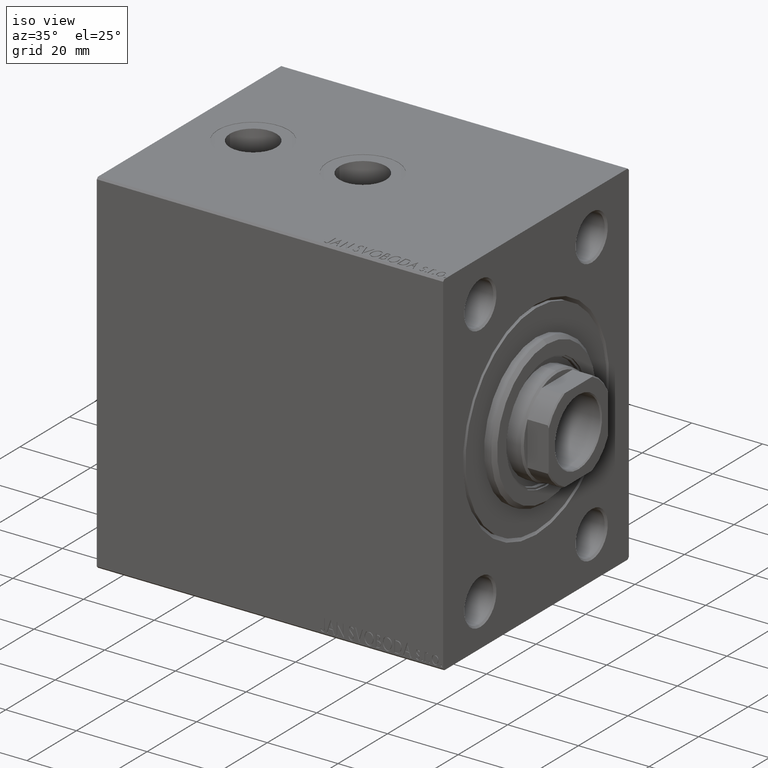
[diagram: clean part render]
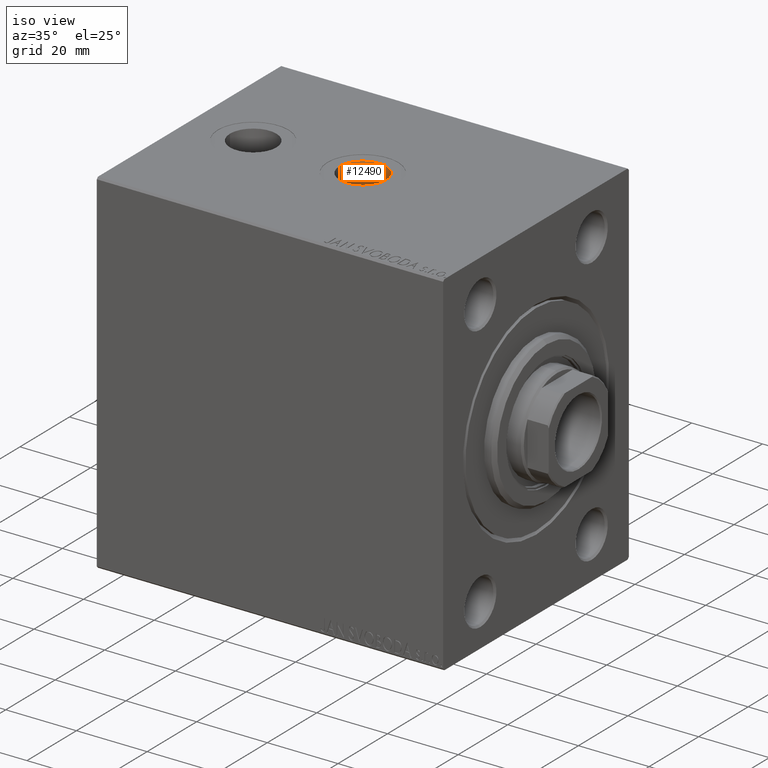
[diagram: same view with one face highlighted and labeled with its STEP entity id]
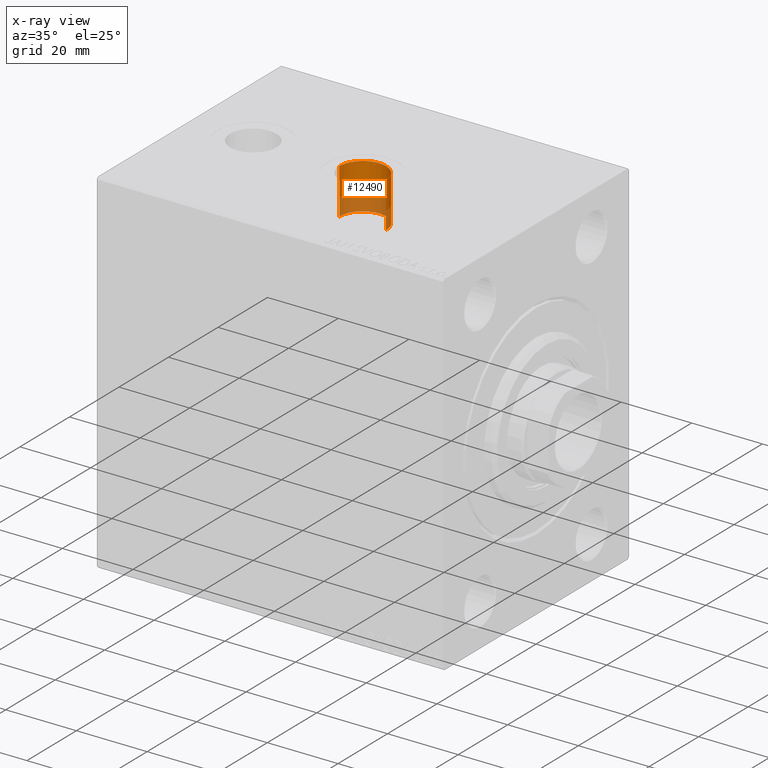
[diagram: x-ray of the same camera — body ghosted, the highlighted face saturated]
A machine part, iso view. The second image highlights one B-rep face of the part: STEP entity #12490.
The next image is the same camera in x-ray: the body ghosted, the highlighted face saturated — about 39% of this face is hidden behind the body in this view.
In plain terms, the highlighted cylindrical surface (edge-blend (fillet) strip) has radius 6.58 mm, axis along (-0, 0, 1).
Its self-contained STEP definition (entity closure, byte-faithful):
#1682 = AXIS2_PLACEMENT_3D ( 'NONE', #12098, #30114, #41325 ) ;
#2552 = CARTESIAN_POINT ( 'NONE',  ( 42.42000000000000171, 3.034628949564101458E-15, -49.90000000000000568 ) ) ;
#3315 = ORIENTED_EDGE ( 'NONE', *, *, #43114, .F. ) ;
#5208 = FACE_OUTER_BOUND ( 'NONE', #36798, .T. ) ;
#5831 = VERTEX_POINT ( 'NONE', #15062 ) ;
#9204 = CYLINDRICAL_SURFACE ( 'NONE', #44301, 6.580000000000002736 ) ;
#9220 = AXIS2_PLACEMENT_3D ( 'NONE', #42021, #41788, #10207 ) ;
#10207 = DIRECTION ( 'NONE',  ( -1.000000000000000000, 0.000000000000000000, 0.000000000000000000 ) ) ;
#12098 = CARTESIAN_POINT ( 'NONE',  ( 49.00000000000000000, 3.034628949564101458E-15, -37.00000000000000711 ) ) ;
#12248 = DIRECTION ( 'NONE',  ( -1.000000000000000000, 0.000000000000000000, 0.000000000000000000 ) ) ;
#12280 = VERTEX_POINT ( 'NONE', #23068 ) ;
#12490 = ADVANCED_FACE ( 'NONE', ( #5208 ), #9204, .F. ) ;
#12706 = DIRECTION ( 'NONE',  ( -0.000000000000000000, -0.000000000000000000, -1.000000000000000000 ) ) ;
#14163 = DIRECTION ( 'NONE',  ( -0.000000000000000000, -0.000000000000000000, -1.000000000000000000 ) ) ;
#14258 = VECTOR ( 'NONE', #37401, 1000.000000000000000 ) ;
#14338 = EDGE_CURVE ( 'NONE', #40926, #5831, #30159, .T. ) ;
#15062 = CARTESIAN_POINT ( 'NONE',  ( 55.58000000000000540, 3.840446543403060105E-15, -49.90000000000000568 ) ) ;
#15522 = VERTEX_POINT ( 'NONE', #42116 ) ;
#16104 = ORIENTED_EDGE ( 'NONE', *, *, #14338, .T. ) ;
#21823 = LINE ( 'NONE', #36082, #14258 ) ;
#23068 = CARTESIAN_POINT ( 'NONE',  ( 55.58000000000000540, 3.840446543403060105E-15, -37.00000000000000711 ) ) ;
#28891 = LINE ( 'NONE', #43152, #35268 ) ;
#30114 = DIRECTION ( 'NONE',  ( 0.000000000000000000, 0.000000000000000000, -1.000000000000000000 ) ) ;
#30159 = CIRCLE ( 'NONE', #9220, 6.580000000000002736 ) ;
#35155 = ORIENTED_EDGE ( 'NONE', *, *, #39587, .T. ) ;
#35268 = VECTOR ( 'NONE', #14163, 1000.000000000000000 ) ;
#36082 = CARTESIAN_POINT ( 'NONE',  ( 42.42000000000000171, 3.034628949564101458E-15, -37.00000000000000711 ) ) ;
#36798 = EDGE_LOOP ( 'NONE', ( #3315, #45668, #35155, #16104 ) ) ;
#37401 = DIRECTION ( 'NONE',  ( -0.000000000000000000, -0.000000000000000000, -1.000000000000000000 ) ) ;
#39587 = EDGE_CURVE ( 'NONE', #15522, #40926, #21823, .T. ) ;
#40926 = VERTEX_POINT ( 'NONE', #2552 ) ;
#41007 = CARTESIAN_POINT ( 'NONE',  ( 49.00000000000000000, 3.034628949564101458E-15, -37.00000000000000711 ) ) ;
#41325 = DIRECTION ( 'NONE',  ( -1.000000000000000000, 0.000000000000000000, 0.000000000000000000 ) ) ;
#41788 = DIRECTION ( 'NONE',  ( 0.000000000000000000, 0.000000000000000000, -1.000000000000000000 ) ) ;
#42021 = CARTESIAN_POINT ( 'NONE',  ( 49.00000000000000000, 3.034628949564101458E-15, -49.90000000000000568 ) ) ;
#42116 = CARTESIAN_POINT ( 'NONE',  ( 42.42000000000000171, 3.034628949564101458E-15, -37.00000000000000711 ) ) ;
#43114 = EDGE_CURVE ( 'NONE', #12280, #5831, #28891, .T. ) ;
#43152 = CARTESIAN_POINT ( 'NONE',  ( 55.58000000000000540, 3.840446543403060105E-15, -37.00000000000000711 ) ) ;
#44223 = EDGE_CURVE ( 'NONE', #15522, #12280, #45753, .T. ) ;
#44301 = AXIS2_PLACEMENT_3D ( 'NONE', #41007, #12706, #12248 ) ;
#45668 = ORIENTED_EDGE ( 'NONE', *, *, #44223, .F. ) ;
#45753 = CIRCLE ( 'NONE', #1682, 6.580000000000002736 ) ;